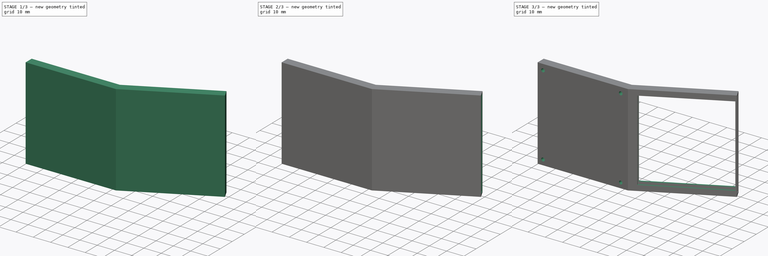
[diagram: build sequence overview — one tinted view per stage of 3, left to right]
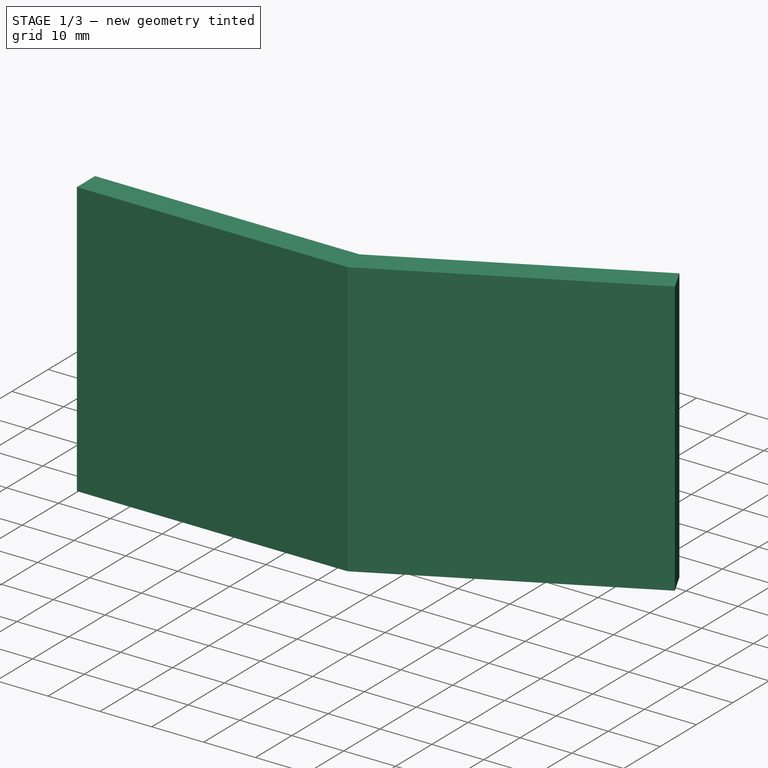
[diagram: stage 1 of 3 — iso view after this stage's code; geometry added in this stage tinted green]
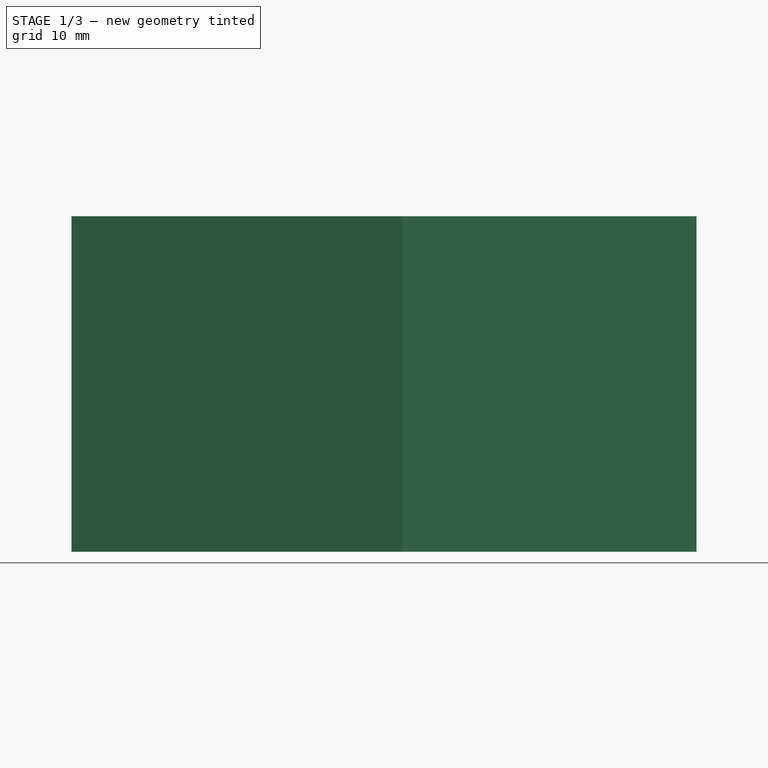
[diagram: stage 1 of 3 — front view after this stage's code; geometry added in this stage tinted green]
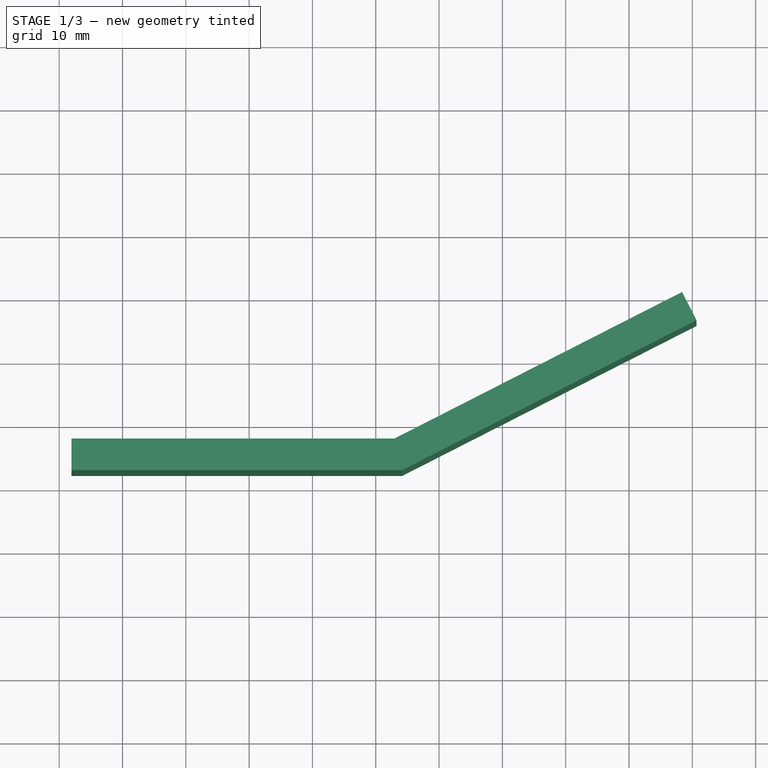
[diagram: stage 1 of 3 — top view after this stage's code; geometry added in this stage tinted green]
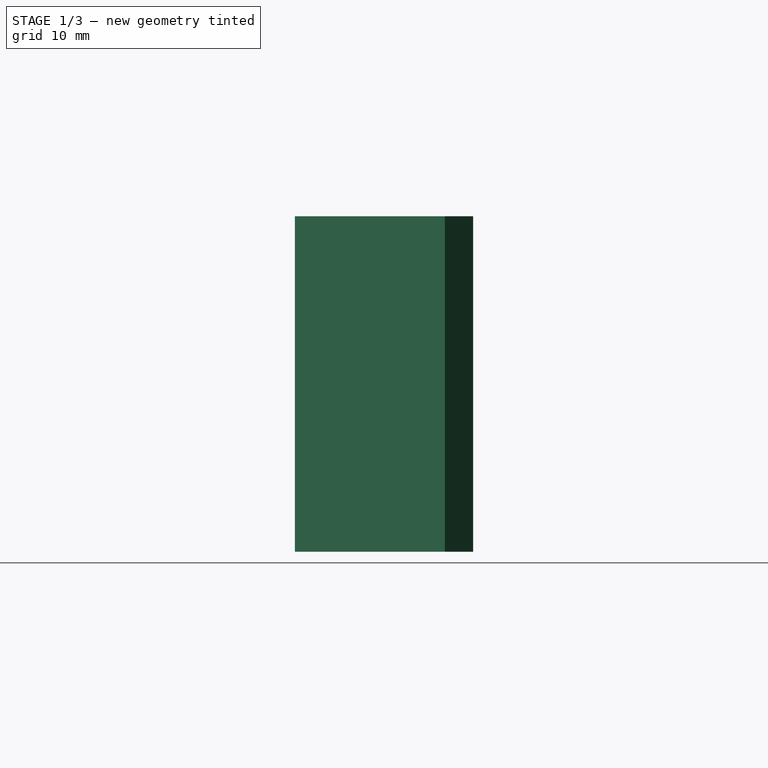
[diagram: stage 1 of 3 — right view after this stage's code; geometry added in this stage tinted green]
FCSTD DOCUMENT  (FreeCAD 0.19R24267 +148 (Git))
Label: Hinge for the mirror 27
License: All rights reserved
LicenseURL: http://en.wikipedia.org/wiki/All_rights_reserved
objects: Sketcher::SketchObject×5, PartDesign::Pocket×3, Part::Face×2, Part::Feature×2, Part::Extrusion×1, PartDesign::FeatureBase×1, PartDesign::Body×1
note: 18 computed .brp shape members not serialized (recipe doc carries the construction recipe); baked Part::Feature solids carry a one-line shape summary decoded from their .brp

FEATURE [Sketcher::SketchObject] Sketch
  FullyConstrained = false
  sketch-geometry (6):
    g0: LineSegment StartX=-48.0536 StartY=37.3016 StartZ=0 EndX=2.9464 EndY=37.3016 EndZ=0
    g1: LineSegment StartX=2.9464 StartY=37.3016 StartZ=0 EndX=48.3877 EndY=60.4551 EndZ=0
    g2: LineSegment StartX=48.3877 StartY=60.4551 StartZ=0 EndX=50.6577 EndY=56 EndZ=0
    g3: LineSegment StartX=50.6577 StartY=56 StartZ=0 EndX=4.1468 EndY=32.3016 EndZ=0
    g4: LineSegment StartX=4.1468 StartY=32.3016 StartZ=0 EndX=-48.0536 EndY=32.3016 EndZ=0
    g5: LineSegment StartX=-48.0536 StartY=32.3016 StartZ=0 EndX=-48.0536 EndY=37.3016 EndZ=0
  constraints (16):
    c: Horizontal(g0)
    c: Coincident(g0,g1)
    c: Coincident(g1,g2)
    c: Coincident(g2,g3)
    c: Coincident(g3,g4)
    c: Horizontal(g4)
    c: Coincident(g4,g5)
    c: Coincident(g5,g0)
    c: Parallel(g1,g3)
    c: Perpendicular(g1,g2)
    c: Perpendicular(g5,g0)
    c: Angle(g1,g0) = 2.67035
    c: Distance(g0,g1) = 51
    c: Distance(g0,g0) = 51
    c: Distance(g0,g4) = 5
    c: Distance(g1,g2) = 5
FEATURE [Part::Extrusion] Extrude
  Base = -> Sketch
  Dir = (0,0,1)
  DirMode = 2
  FaceMakerClass = Part::FaceMakerBullseye
  LengthFwd = 53
  LengthRev = 0
  Solid = true
  Symmetric = false
FEATURE [Sketcher::SketchObject] Sketch001
  FullyConstrained = false
  MapMode = 5
  Placement = pos=(62.8693,32.0335,0) rot=(0.397594,0.648814,0.648814;2.38473rad)
  Support = -> [Extrude]
  sketch-geometry (4):
    g0: LineSegment StartX=27.7007 StartY=52.2 StartZ=0 EndX=30.9007 EndY=52.2 EndZ=0
    g1: LineSegment StartX=30.9007 StartY=52.2 StartZ=0 EndX=30.9007 EndY=1 EndZ=0
    g2: LineSegment StartX=30.9007 StartY=1 StartZ=0 EndX=27.7007 EndY=1 EndZ=0
    g3: LineSegment StartX=27.7007 StartY=1 StartZ=0 EndX=27.7007 EndY=52.2 EndZ=0
  constraints (11):
    c: Coincident(g0,g1)
    c: Coincident(g1,g2)
    c: Coincident(g2,g3)
    c: Coincident(g3,g0)
    c: Horizontal(g0)
    c: Horizontal(g2)
    c: Vertical(g1)
    c: Vertical(g3)
    c: Distance(g0,g0) = 3.2
    c: Distance(g0,g2) = 51.2
    c: DistanceY(g-1,g2) = 1
FEATURE [PartDesign::FeatureBase] BaseFeature
  BaseFeature = -> Extrude
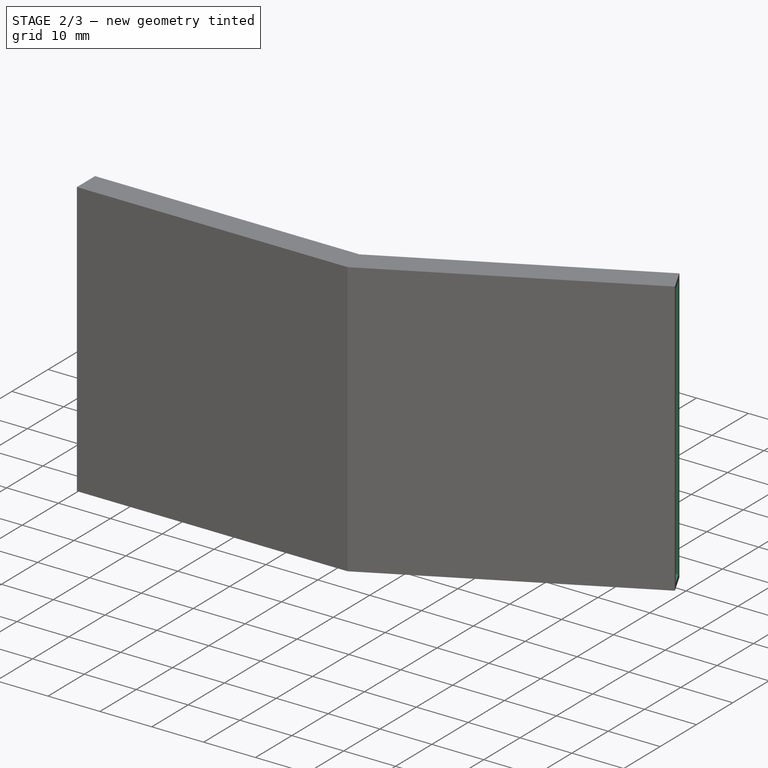
[diagram: stage 2 of 3 — iso view after this stage's code; geometry added in this stage tinted green]
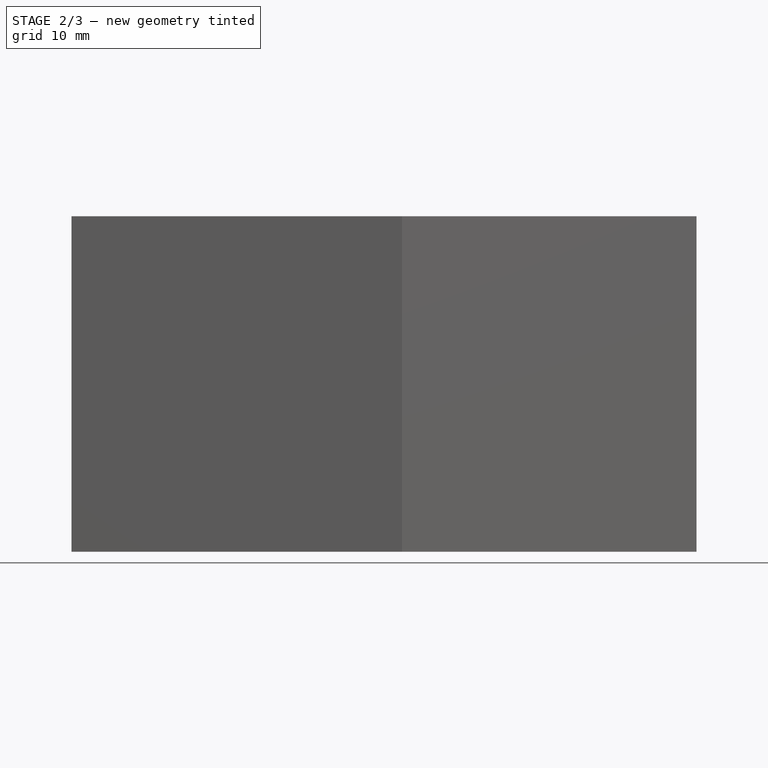
[diagram: stage 2 of 3 — front view after this stage's code; geometry added in this stage tinted green]
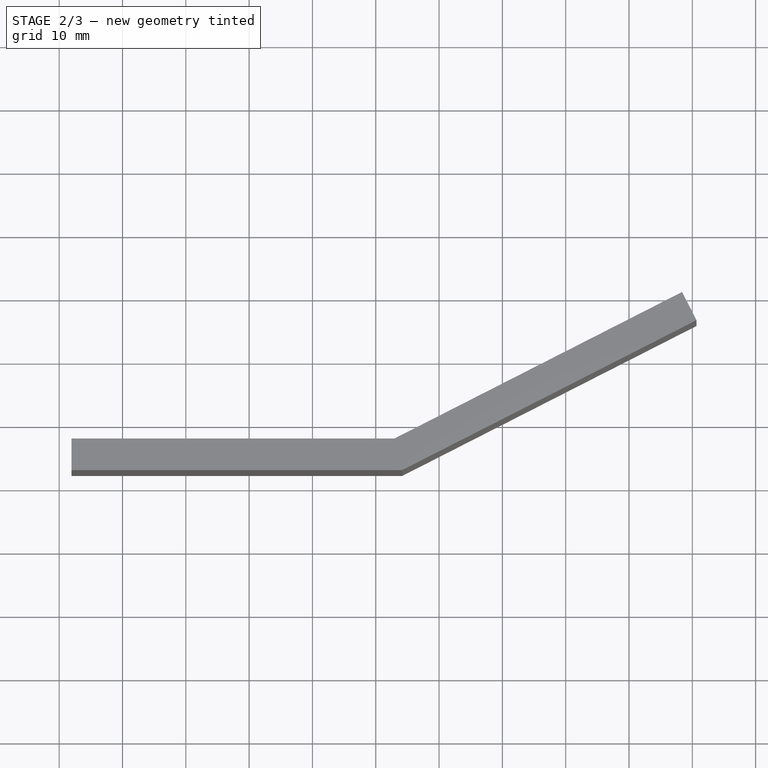
[diagram: stage 2 of 3 — top view after this stage's code; geometry added in this stage tinted green]
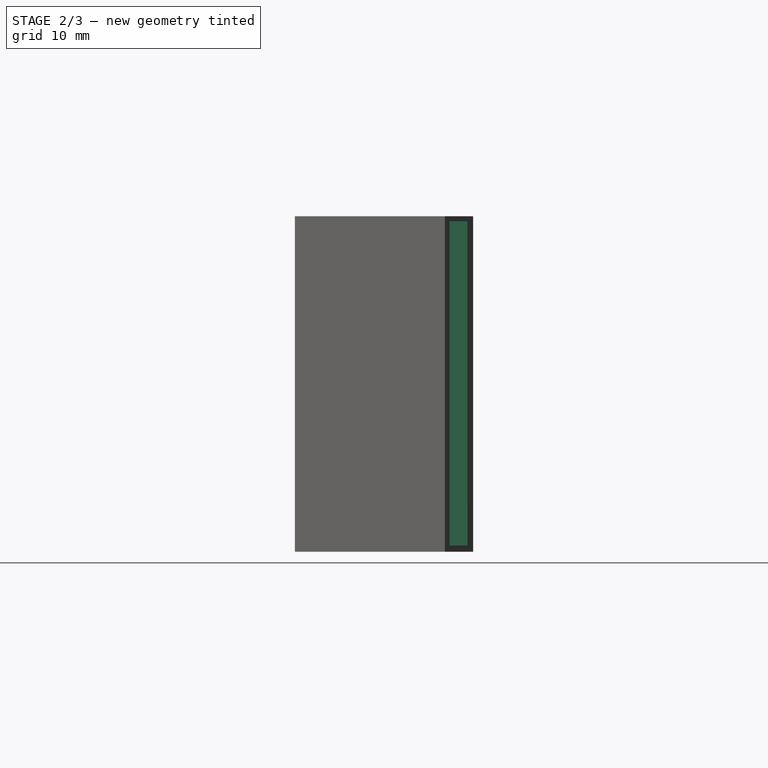
[diagram: stage 2 of 3 — right view after this stage's code; geometry added in this stage tinted green]
FEATURE [PartDesign::Pocket] Pocket
  BaseFeature = -> BaseFeature
  Length = 51
  Length2 = 100
  Profile = -> Sketch001
  Type = 0
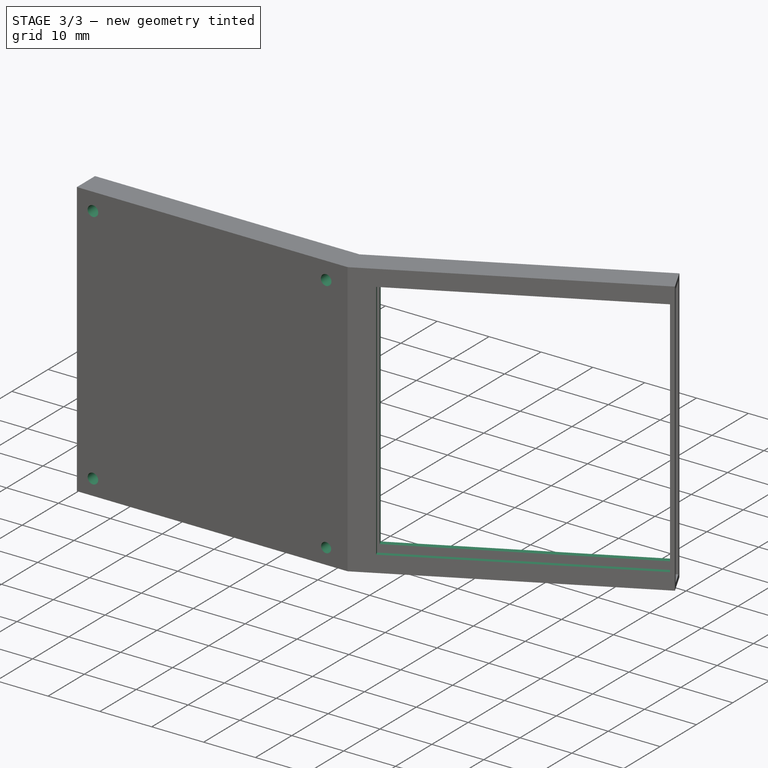
[diagram: stage 3 of 3 — iso view after this stage's code; geometry added in this stage tinted green]
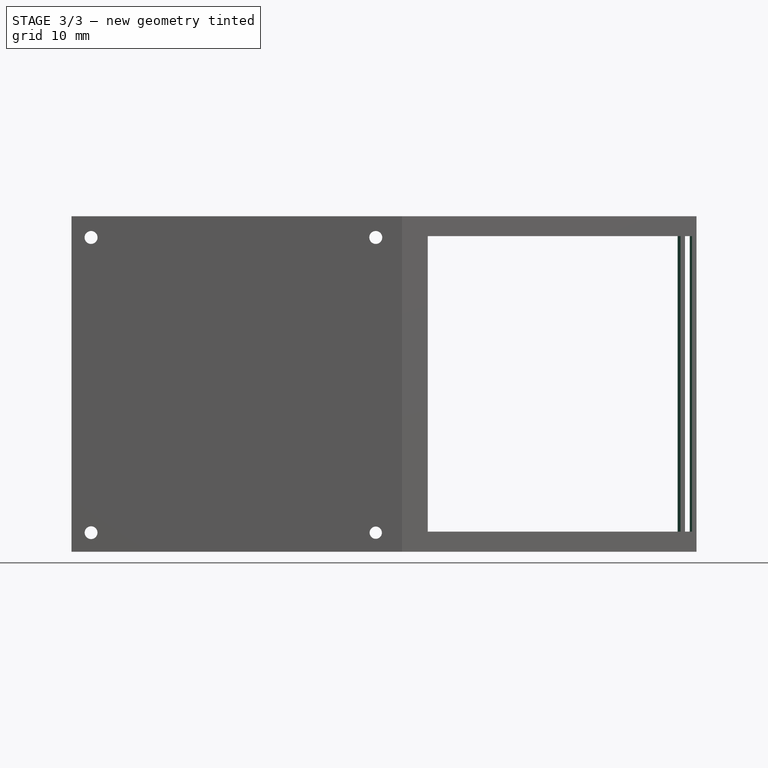
[diagram: stage 3 of 3 — front view after this stage's code; geometry added in this stage tinted green]
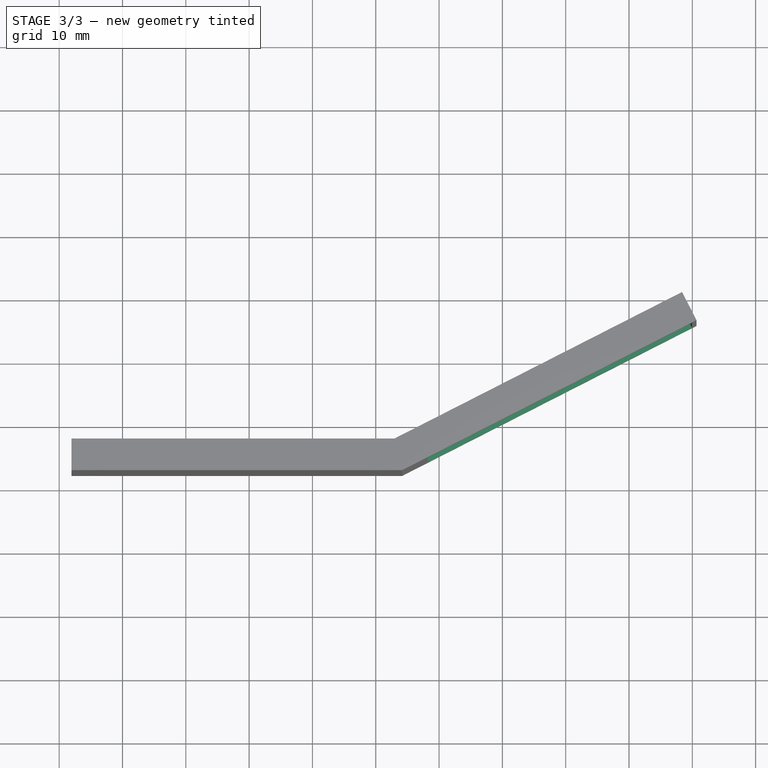
[diagram: stage 3 of 3 — top view after this stage's code; geometry added in this stage tinted green]
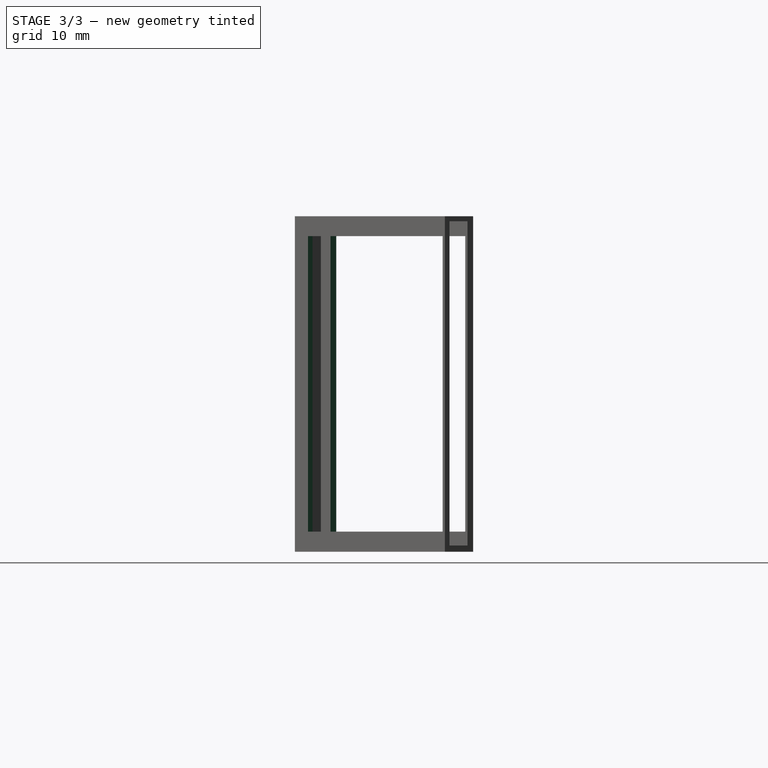
[diagram: stage 3 of 3 — right view after this stage's code; geometry added in this stage tinted green]
FEATURE [Sketcher::SketchObject] Sketch002
  FullyConstrained = false
  MapMode = 5
  Placement = pos=(-14.4815,28.4216,0) rot=(-0.167367,0.697133,0.697133;3.47325rad)
  Support = -> [Pocket]
  sketch-geometry (4):
    g0: LineSegment StartX=-69.7705 StartY=3.18786 StartZ=0 EndX=-22.9199 EndY=3.18786 EndZ=0
    g1: LineSegment StartX=-22.9199 StartY=3.18786 StartZ=0 EndX=-22.9199 EndY=49.8585 EndZ=0
    g2: LineSegment StartX=-22.9199 StartY=49.8585 StartZ=0 EndX=-69.7705 EndY=49.8585 EndZ=0
    g3: LineSegment StartX=-69.7705 StartY=49.8585 StartZ=0 EndX=-69.7705 EndY=3.18786 EndZ=0
  constraints (8):
    c: Coincident(g0,g1)
    c: Coincident(g1,g2)
    c: Coincident(g2,g3)
    c: Coincident(g3,g0)
    c: Horizontal(g0)
    c: Horizontal(g2)
    c: Vertical(g1)
    c: Vertical(g3)
FEATURE [PartDesign::Pocket] Pocket001
  BaseFeature = -> Pocket
  Length = 5
  Length2 = 100
  Profile = -> Sketch002
  Type = 0
FEATURE [Sketcher::SketchObject] Sketch003
  FullyConstrained = false
  MapMode = 5
  Placement = pos=(0,37.3016,0) rot=(0,0.707107,0.707107;3.14159rad)
  Support = -> [Pocket001]
  sketch-geometry (4):
    g0: Circle CenterX=0 CenterY=3.0163 CenterZ=0 NormalX=0 NormalY=0 NormalZ=1 AngleXU=0 Radius=0.967921
    g1: Circle CenterX=0 CenterY=49.6428 CenterZ=0 NormalX=0 NormalY=0 NormalZ=1 AngleXU=0 Radius=1.02027
    g2: Circle CenterX=44.9656 CenterY=3.01632 CenterZ=0 NormalX=0 NormalY=0 NormalZ=1 AngleXU=0 Radius=1.01002
    g3: Circle CenterX=44.9656 CenterY=49.6428 CenterZ=0 NormalX=0 NormalY=0 NormalZ=1 AngleXU=0 Radius=1.02027
  constraints (2):
    c: PointOnObject(g0,g-2)
    c: PointOnObject(g1,g-2)
FEATURE [PartDesign::Pocket] Pocket002
  BaseFeature = -> Pocket001
  Length = 5
  Length2 = 100
  Profile = -> Sketch003
  Type = 0
FEATURE [Sketcher::SketchObject] Sketch004
  FullyConstrained = false
  MapMode = 5
  Placement = pos=(-48.0536,0,0) rot=(0.57735,-0.57735,-0.57735;2.0944rad)
  Support = -> [Pocket002]
  sketch-geometry (4):
    g0: LineSegment StartX=-14.002 StartY=54.134 StartZ=0 EndX=-69.2161 EndY=54.134 EndZ=0
    g1: LineSegment StartX=-69.2161 StartY=54.134 StartZ=0 EndX=-69.2161 EndY=-23.9465 EndZ=0
    g2: LineSegment StartX=-69.2161 StartY=-23.9465 StartZ=0 EndX=-14.002 EndY=-23.9465 EndZ=0
    g3: LineSegment StartX=-14.002 StartY=-23.9465 StartZ=0 EndX=-14.002 EndY=54.134 EndZ=0
  constraints (8):
    c: Coincident(g0,g1)
    c: Coincident(g1,g2)
    c: Coincident(g2,g3)
    c: Coincident(g3,g0)
    c: Horizontal(g0)
    c: Horizontal(g2)
    c: Vertical(g1)
    c: Vertical(g3)
FEATURE [PartDesign::Body] Body
  BaseFeature = -> Extrude
  Group = -> [BaseFeature,Sketch001,Pocket,Sketch002,Pocket001,Sketch003,Pocket002,Sketch004]
  Origin = -> Origin
  Tip = -> Pocket002
FEATURE [Part::Face] Face
  FaceMakerClass = Part::FaceMakerBullseye
  Placement = pos=(80,37,0) rot=(0,0,1;0.453786rad)
  Sources = -> [Sketch004]
FEATURE [Part::Face] Face001
  FaceMakerClass = Part::FaceMakerBullseye
  Placement = pos=(24,-14,0) rot=(0,0,1;-0.523599rad)
  Sources = -> [Sketch004]
FEATURE [Part::Feature] Solid
  shape: bbox 71.97 x 14.57 x 53 mm, 24 faces (baked)
FEATURE [Part::Feature] Solid002
  shape: bbox 28.67 x 14.57 x 53 mm, 22 faces (baked)
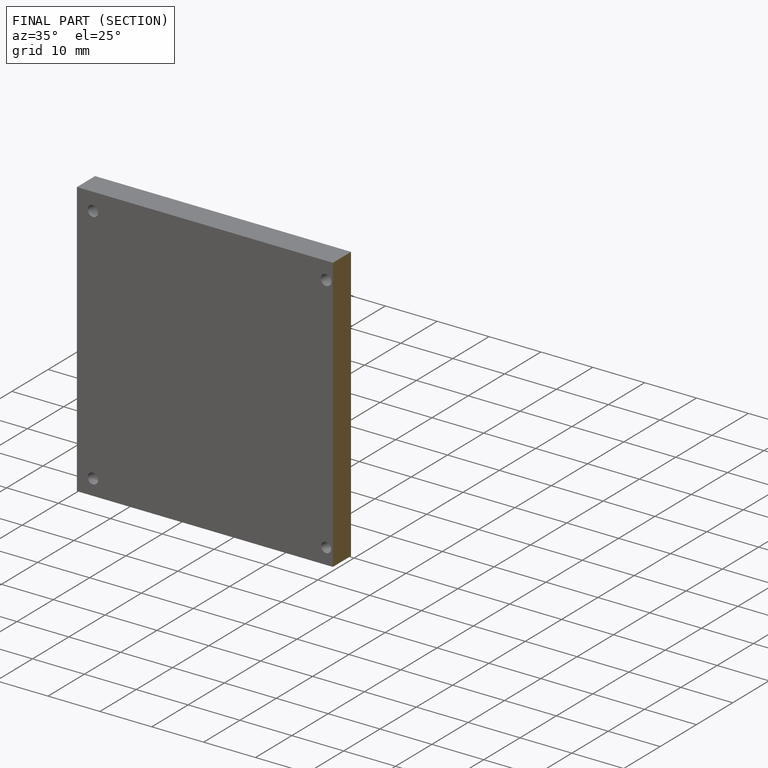
[diagram: finished part — half-section view (interior)]
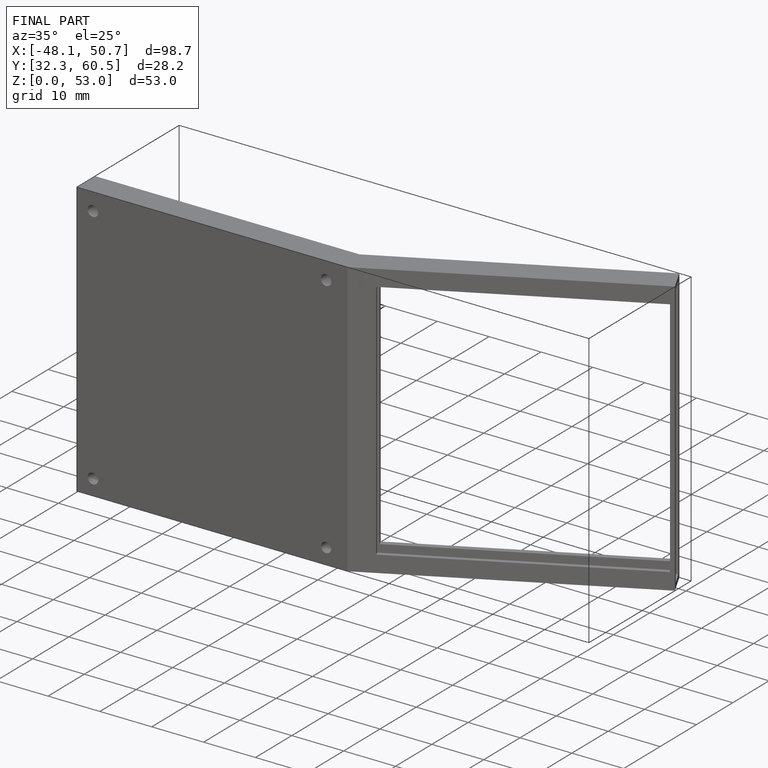
[diagram: finished part — iso view with bounding-box wireframe]
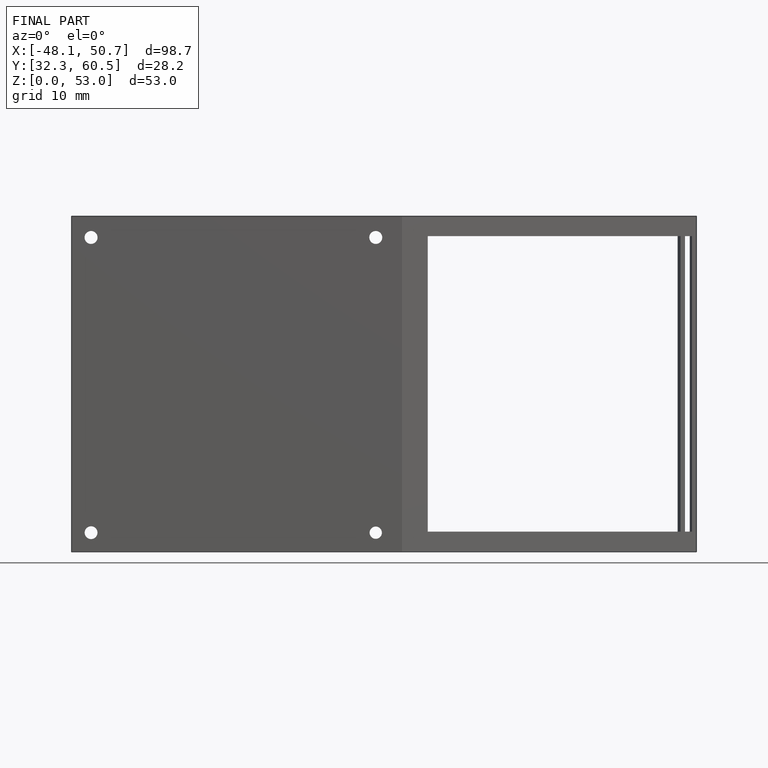
[diagram: finished part — front view with bounding-box wireframe]
